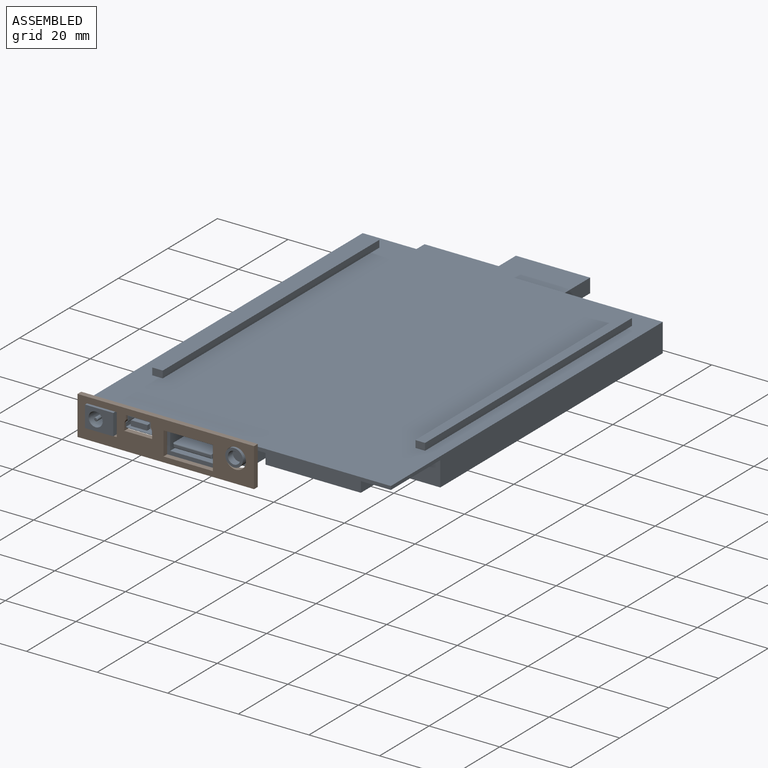
[diagram: assembled view]
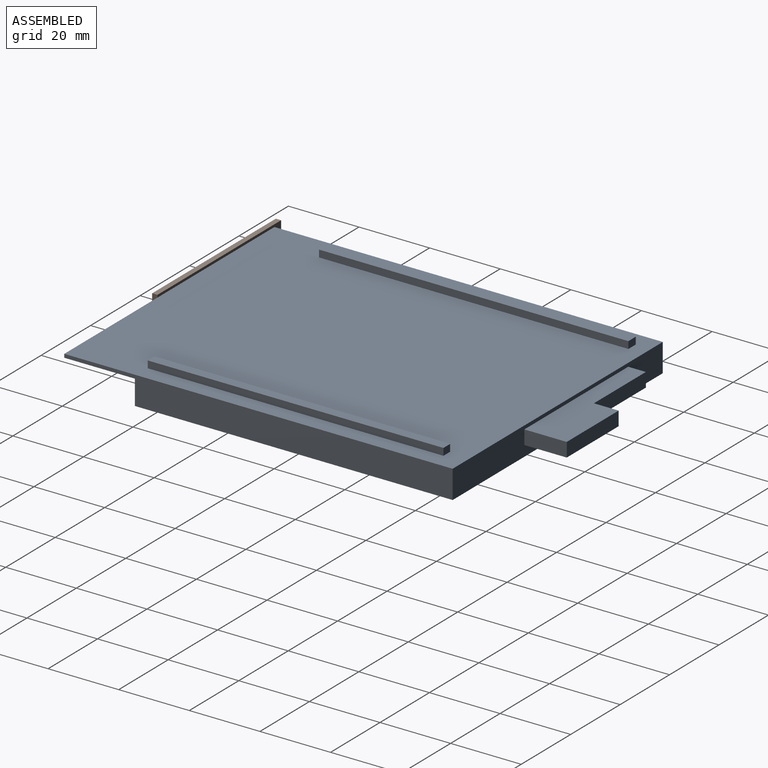
[diagram: assembled view, second angle]
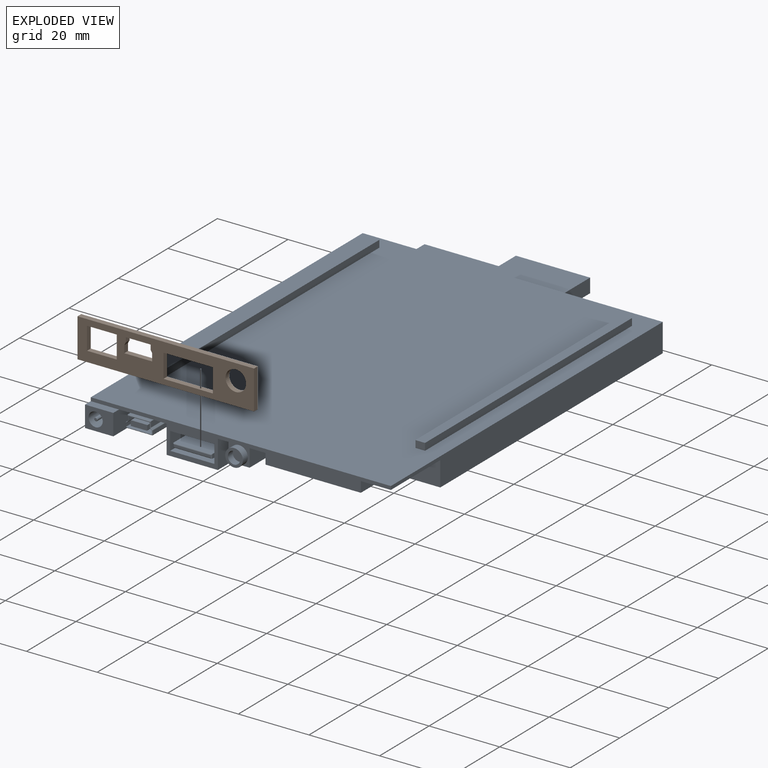
[diagram: exploded view]
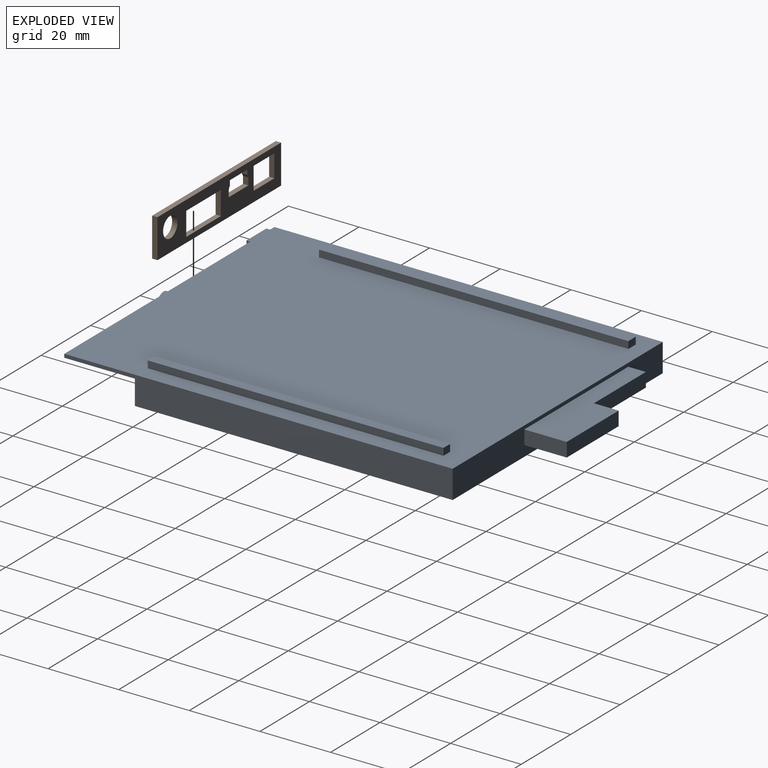
[diagram: exploded view, second angle]
ASSEMBLY  parts=2 mates=3
PART A: 124 faces, bbox 85x124.3x15 mm
  f0: plane 110x85mm, normal (0,0,1), area 8864.2mm2, adj f4,f15,f16,f17,f112,f113,f114,f115
  f1: plane 12x4mm, normal (1,0,0), area 48mm2, adj f3,f16,f108,f109
  f2: plane 5x4mm, normal (-1,0,0), area 20mm2, adj f3,f16,f106,f109
  f3: plane 42x12mm, normal (0,0,-1), area 357mm2, adj f1,f2,f16,f106,f107,f108
  f4: plane 85x9mm, normal (0,-1,0), area 228.6mm2, adj f0,f10,f14,f15,f17,f18,f77,f78
  f5: plane 4.67x1.49mm, normal (0,-1,0), area 6.9mm2, adj f55,f56,f57,f58,f59,f73,f74,f75
  f6: plane 0.2x0.2mm, normal (0,-1,0), area 0mm2, adj f42,f46,f72
  f7: plane 0.2x0.2mm, normal (0,-1,0), area 0mm2, adj f41,f42,f61
  f8: plane 0.18x0.11mm, normal (0,-1,0), area 0mm2, adj f41,f45,f63,f64
  f9: torus R=0.3mm, axis (0,-1,0), area 0mm2, adj f11,f35,f45,f48,f64
  f10: plane 6.6x1mm, normal (0,0,1), area 6.6mm2, adj f4,f32,f34,f50
  f11: plane 6.83x2.09mm, normal (0,-1,0), area 0.9mm2, adj f9,f46,f48,f49,f50,f51,f52,f53
  f12: plane 7.7x3.5mm, normal (0,1,0), area 24.9mm2, adj f13,f14,f28,f29,f30,f31,f32,f33
  f13: plane 8.8x7.3mm, normal (0,0,-1), area 64.2mm2, adj f12,f33,f39,f42
  f14: plane 85x20mm, normal (0,0,-1), area 828.9mm2, adj f4,f12,f15,f17,f19,f20,f32,f34
  f15: plane 110x8mm, normal (1,0,0), area 740mm2, adj f0,f4,f14,f16,f110,f111
  f16: plane 85x8mm, normal (0,1,0), area 512mm2, adj f0,f1,f2,f3,f15,f17,f109,f111
  f17: plane 112.3x8mm, normal (-1,0,0), area 818mm2, adj f0,f4,f14,f16,f18,f19,f21,f22
  f18: plane 8x2.3mm, normal (0,0,1), area 18.4mm2, adj f4,f17,f20,f21
  f19: plane 8x6mm, normal (0,1,0), area 48mm2, adj f14,f17,f20,f22
  f20: plane 13x6mm, normal (1,0,0), area 78mm2, adj f14,f18,f19,f21,f22
  f21: plane 8x6mm, normal (0,-1,0), area 35.4mm2, adj f17,f18,f20,f22,f24
  f22: plane 13x8mm, normal (0,0,-1), area 104mm2, adj f17,f19,f20,f21
  f23: cylinder r=0.5mm len=4.8mm, axis (0,-1,0), area 15.1mm2, adj f25,f27
  f24: cylinder r=2mm len=5mm, axis (0,-1,0), area 62.8mm2, adj f21,f25
  f25: plane 4x4mm, normal (0,-1,0), area 11.8mm2, adj f23,f24
  f26: plane 0.6x0.6mm, normal (0,-1,0), area 0.3mm2, adj f27
  f27: torus R=0.3mm, axis (0,-1,0), area 0.8mm2, adj f23,f26
  f28: plane 8.8x1.14mm, normal (-1,0,0), area 10mm2, adj f12,f29,f33,f46
  f29: cylinder r=0.2mm len=8.8mm, axis (0,-1,0), area 1.6mm2, adj f12,f28,f30,f47
  f30: plane 8.8x0.44mm, normal (-0.62,0,0.78), area 4.9mm2, adj f12,f29,f31,f49
  f31: cylinder r=0.1mm len=8.8mm, axis (0,-1,0), area 0.8mm2, adj f12,f30,f32,f51
  f32: plane 8.8x1.58mm, normal (-1,0,0), area 13.9mm2, adj f10,f12,f14,f31,f52
  f33: cylinder r=0.2mm len=8.8mm, axis (0,-1,0), area 2.8mm2, adj f12,f13,f28,f44
  f34: plane 8.8x1.58mm, normal (1,0,0), area 13.9mm2, adj f10,f12,f14,f35,f48
  f35: cylinder r=0.1mm len=8.8mm, axis (0,-1,0), area 0.7mm2, adj f9,f12,f34,f36
  f36: plane 8.8x0.45mm, normal (0.66,0,0.75), area 5.3mm2, adj f12,f35,f37,f45
  f37: cylinder r=0.2mm len=8.8mm, axis (0,-1,0), area 1.5mm2, adj f12,f36,f38,f43
  f38: plane 8.8x1.1mm, normal (1,0,0), area 9.7mm2, adj f12,f37,f39,f41
  f39: cylinder r=0.2mm len=8.8mm, axis (0,-1,0), area 2.8mm2, adj f12,f13,f38,f40
  f40: sphere r=0.2mm, area 0.1mm2, adj f39,f41,f42
  f41: cylinder r=0.2mm len=1.1mm, axis (0,0,1), area 0.3mm2, adj f7,f8,f38,f40,f43,f62
  f42: cylinder r=0.2mm len=7.3mm, axis (1,0,0), area 2.3mm2, adj f6,f7,f13,f40,f44,f60
  f43: sphere r=0.2mm, area 0mm2, adj f37,f41,f45
  f44: sphere r=0.2mm, area 0.1mm2, adj f33,f42,f46
  f45: cylinder r=0.2mm len=0.58mm, axis (-0.75,0,0.66), area 0.2mm2, adj f8,f9,f36,f43,f64
  f46: cylinder r=0.2mm len=1.14mm, axis (0,0,-1), area 0.4mm2, adj f6,f11,f28,f44,f47,f71
  f47: sphere r=0.2mm, area 0mm2, adj f29,f46,f49
  f48: cylinder r=0.2mm len=1.58mm, axis (0,0,1), area 0.5mm2, adj f9,f11,f34,f50
  f49: cylinder r=0.2mm len=0.56mm, axis (-0.78,0,-0.62), area 0.2mm2, adj f11,f30,f47,f51
  f50: cylinder r=0.2mm len=6.6mm, axis (-1,0,0), area 2mm2, adj f10,f11,f48,f52
  f51: torus R=0.3mm, axis (0,-1,0), area 0mm2, adj f11,f31,f49,f52
  f52: cylinder r=0.2mm len=1.58mm, axis (0,0,-1), area 0.5mm2, adj f11,f32,f50,f51
  f53: plane 5x1.28mm, normal (-1,0,0), area 6.4mm2, adj f11,f54,f65,f66
  f54: plane 6x5mm, normal (0,0,-1), area 30mm2, adj f11,f53,f66,f67
  f55: plane 5x4.47mm, normal (0,0,1), area 22.4mm2, adj f5,f56,f66,f75
  f56: cylinder r=0.1mm len=5mm, axis (0,-1,0), area 0.8mm2, adj f5,f55,f57,f66
  f57: plane 5x1.29mm, normal (1,0,0), area 6.4mm2, adj f5,f56,f58,f66
  f58: cylinder r=0.1mm len=5mm, axis (0,-1,0), area 0.8mm2, adj f5,f57,f59,f66
  f59: plane 5x4.47mm, normal (0,0,-1), area 22.4mm2, adj f5,f58,f66,f73
  f60: plane 6.9x5mm, normal (0,0,1), area 34.5mm2, adj f42,f61,f66,f72
  f61: cylinder r=0.2mm len=5mm, axis (0,-1,0), area 1.6mm2, adj f7,f60,f62,f66
  f62: plane 5x0.81mm, normal (-1,0,0), area 4mm2, adj f41,f61,f63,f66
  f63: cylinder r=0.2mm len=5mm, axis (0,-1,0), area 0.8mm2, adj f8,f62,f64,f66
  f64: plane 5x0.55mm, normal (-0.66,0,-0.75), area 3.7mm2, adj f8,f9,f11,f45,f63,f65,f66
  f65: cylinder r=0.1mm len=5mm, axis (0,-1,0), area 0.4mm2, adj f11,f53,f64,f66
  f66: plane 7.3x3mm, normal (0,-1,0), area 12.8mm2, adj f53,f54,f55,f56,f57,f58,f59,f60
  f67: plane 5x1.28mm, normal (1,0,0), area 6.4mm2, adj f11,f54,f66,f68
  f68: cylinder r=0.1mm len=5mm, axis (0,-1,0), area 0.4mm2, adj f11,f66,f67,f69
  f69: plane 5x0.55mm, normal (0.66,0,-0.75), area 3.7mm2, adj f11,f66,f68,f70
  f70: cylinder r=0.2mm len=5mm, axis (0,-1,0), area 0.8mm2, adj f11,f66,f69,f71
  f71: plane 5x0.81mm, normal (1,0,0), area 4mm2, adj f46,f66,f70,f72
  f72: cylinder r=0.2mm len=5mm, axis (0,-1,0), area 1.6mm2, adj f6,f60,f66,f71
  f73: cylinder r=0.1mm len=5mm, axis (0,-1,0), area 0.8mm2, adj f5,f59,f66,f74
  f74: plane 5x1.29mm, normal (-1,0,0), area 6.4mm2, adj f5,f66,f73,f75
  f75: cylinder r=0.1mm len=5mm, axis (0,-1,0), area 0.8mm2, adj f5,f55,f66,f74
  f76: plane 14.5x8mm, normal (0,1,0), area 116mm2, adj f14,f77,f78,f79
  f77: plane 14x8mm, normal (1,0,0), area 112mm2, adj f4,f14,f76,f79
  f78: plane 14x8mm, normal (-1,0,0), area 112mm2, adj f4,f14,f76,f79
  f79: plane 14.5x14mm, normal (0,0,-1), area 203mm2, adj f4,f76,f77,f78
  f80: plane 12.5x10mm, normal (0,0,1), area 125mm2, adj f4,f81,f87,f88
  f81: plane 10x5.1mm, normal (-1,0,0), area 51mm2, adj f4,f80,f82,f88
  f82: plane 12.5x10mm, normal (0,0,-1), area 125mm2, adj f4,f81,f87,f88
  f83: plane 9.7x1.2mm, normal (1,0,0), area 11.6mm2, adj f84,f86,f88,f91
  f84: plane 11x9.7mm, normal (0,0,-1), area 106.7mm2, adj f83,f85,f88,f90
  f85: plane 9.7x1.2mm, normal (-1,0,0), area 11.6mm2, adj f84,f86,f88,f92
  f86: plane 11x9.7mm, normal (0,0,1), area 106.7mm2, adj f83,f85,f88,f93
  f87: plane 10x5.1mm, normal (1,0,0), area 51mm2, adj f4,f80,f82,f88
  f88: plane 12.5x5.1mm, normal (0,-1,0), area 50.6mm2, adj f80,f81,f82,f83,f84,f85,f86,f87
  f89: plane 10.4x0.6mm, normal (0,-1,0), area 6.2mm2, adj f90,f91,f92,f93
  f90: cylinder r=0.3mm len=11mm, axis (1,0,0), area 5.1mm2, adj f84,f89,f91,f92
  f91: cylinder r=0.3mm len=1.2mm, axis (0,0,1), area 0.5mm2, adj f83,f89,f90,f93
  f92: cylinder r=0.3mm len=1.2mm, axis (0,0,-1), area 0.5mm2, adj f85,f89,f90,f93
  f93: cylinder r=0.3mm len=11mm, axis (-1,0,0), area 5.1mm2, adj f86,f89,f91,f92
  f94: plane 6x5mm, normal (0,1,0), area 30mm2, adj f14,f95,f96,f97
  f95: plane 12x5mm, normal (1,0,0), area 60mm2, adj f4,f14,f94,f97
  f96: plane 12x5mm, normal (-1,0,0), area 60mm2, adj f4,f14,f94,f97
  f97: plane 12x6mm, normal (0,0,-1), area 72mm2, adj f4,f94,f95,f96
  f98: cylinder r=1.75mm len=3.5mm, axis (0,1,0), area 22mm2, adj f100,f101
  f99: cylinder r=2.5mm len=5mm, axis (0,1,0), area 31.4mm2, adj f4,f100
  f100: plane 5x5mm, normal (0,-1,0), area 10mm2, adj f98,f99
  f101: plane 3.5x3.5mm, normal (0,-1,0), area 9.6mm2, adj f98
  f102: plane 27x3mm, normal (0,1,0), area 81mm2, adj f14,f103,f104,f105
  f103: plane 17x3mm, normal (1,0,0), area 51mm2, adj f4,f14,f102,f105
  f104: plane 17x3mm, normal (-1,0,0), area 51mm2, adj f4,f14,f102,f105
  f105: plane 27x17mm, normal (0,0,-1), area 459mm2, adj f4,f102,f103,f104
  f106: plane 21x4mm, normal (0,1,0), area 84mm2, adj f2,f3,f107,f109
  f107: plane 7x4mm, normal (-1,0,0), area 28mm2, adj f3,f106,f108,f109
  f108: plane 21x4mm, normal (0,1,0), area 84mm2, adj f1,f3,f107,f109
  f109: plane 42x12mm, normal (0,0,1), area 357mm2, adj f1,f2,f16,f106,f107,f108
  f110: plane 85x7mm, normal (0,-1,0), area 595mm2, adj f14,f15,f17,f111
  f111: plane 90x85mm, normal (0,0,-1), area 7642.9mm2, adj f15,f16,f17,f110,f122
  f112: plane 2.7x2mm, normal (0,-1,0), area 5.4mm2, adj f0,f113,f115,f116
  f113: plane 83.74x2mm, normal (1,0,0), area 167.5mm2, adj f0,f112,f114,f116
  f114: plane 2.7x2mm, normal (0,1,0), area 5.4mm2, adj f0,f113,f115,f116
  f115: plane 83.74x2mm, normal (-1,0,0), area 167.5mm2, adj f0,f112,f114,f116
  f116: plane 83.74x2.7mm, normal (0,0,1), area 226.2mm2, adj f112,f113,f114,f115
  f117: plane 2.96x2mm, normal (0,-1,0), area 5.9mm2, adj f0,f118,f120,f121
  f118: plane 87.61x2mm, normal (1,0,0), area 175.2mm2, adj f0,f117,f119,f121
  f119: plane 2.96x2mm, normal (0,1,0), area 5.9mm2, adj f0,f118,f120,f121
  f120: plane 87.61x2mm, normal (-1,0,0), area 175.2mm2, adj f0,f117,f119,f121
  f121: plane 87.61x2.96mm, normal (0,0,1), area 259.6mm2, adj f117,f118,f119,f120
  f122: cylinder r=1.5mm len=5mm, axis (0,0,1), area 47.1mm2, adj f111,f123
  f123: plane 3x3mm, normal (0,0,-1), area 7.1mm2, adj f122
PART B: 23 faces, bbox 50x1.5x11 mm
  f0: plane 6.4x1.5mm, normal (1,0,0), area 9.6mm2, adj f1,f16,f21,f22
  f1: plane 8.4x1.5mm, normal (0,0,-1), area 12.6mm2, adj f0,f2,f21,f22
  f2: plane 6.4x1.5mm, normal (-1,0,0), area 9.6mm2, adj f1,f16,f21,f22
  f3: plane 6.7x1.5mm, normal (1,0,0), area 10.1mm2, adj f4,f17,f21,f22
  f4: plane 14x1.5mm, normal (0,0,-1), area 21mm2, adj f3,f5,f21,f22
  f5: plane 6.7x1.5mm, normal (-1,0,0), area 10.1mm2, adj f4,f17,f21,f22
  f6: plane 2.08x1.5mm, normal (1,0,0), area 3.1mm2, adj f7,f18,f21,f22
  f7: plane 7.9x1.5mm, normal (0,0,-1), area 11.8mm2, adj f6,f8,f21,f22
  f8: plane 2.08x1.5mm, normal (-1,0,0), area 3.1mm2, adj f7,f9,f21,f22
  f9: plane 1.5x0.8mm, normal (-0.87,0,0.49), area 1.4mm2, adj f8,f10,f21,f22
  f10: plane 1.5x1.32mm, normal (-1,0,0), area 2mm2, adj f9,f11,f21,f22
  f11: plane 7x1.5mm, normal (0,0,1), area 10.5mm2, adj f10,f12,f21,f22
  f12: plane 1.5x1.32mm, normal (1,0,0), area 2mm2, adj f11,f18,f21,f22
  f13: plane 11x1.5mm, normal (-1,0,0), area 16.5mm2, adj f14,f19,f21,f22
  f14: plane 50x1.5mm, normal (0,0,-1), area 75mm2, adj f13,f15,f21,f22
  f15: plane 11x1.5mm, normal (1,0,0), area 16.5mm2, adj f14,f19,f21,f22
  f16: plane 8.4x1.5mm, normal (0,0,1), area 12.6mm2, adj f0,f2,f21,f22
  f17: plane 14x1.5mm, normal (0,0,1), area 21mm2, adj f3,f5,f21,f22
  f18: plane 1.5x0.8mm, normal (0.87,0,0.49), area 1.4mm2, adj f6,f12,f21,f22
  f19: plane 50x1.5mm, normal (0,0,1), area 75mm2, adj f13,f15,f21,f22
  f20: cylinder r=2.9mm len=5.8mm, axis (0,-1,0), area 27.3mm2, adj f21,f22
  f21: plane 50x11mm, normal (0,1,0), area 344.4mm2, adj f0,f1,f2,f3,f4,f5,f6,f7
  f22: plane 50x11mm, normal (0,-1,0), area 344.4mm2, adj f0,f1,f2,f3,f4,f5,f6,f7
PLACE A t=(-56.34,47.89,44.62)mm
PLACE B rot(axis=(0,1,0),180deg) t=(-54.49,-8.61,44.32)mm
MATE planar A.f18 <-> B.f16  axis (0,0,1) through (-94.84,-8.26,44.62)mm
MATE planar A.f4 <-> B.f21  axis (0,-1,0) through (-77.34,-7.11,44.62)mm
MATE planar A.f17 <-> B.f2  axis (-1,0,0) through (-98.84,-7.11,44.62)mm
